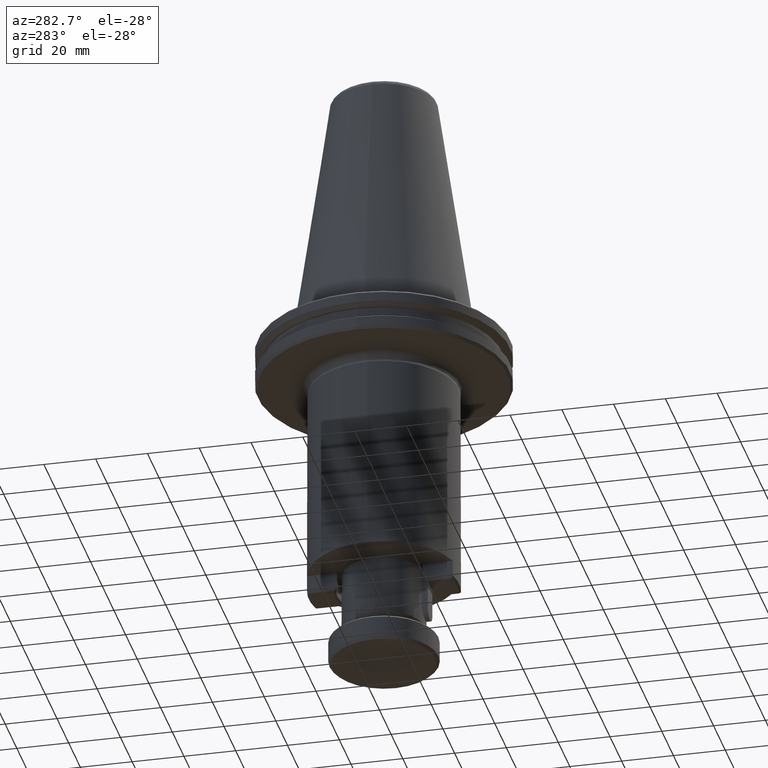
[diagram: clean part render]
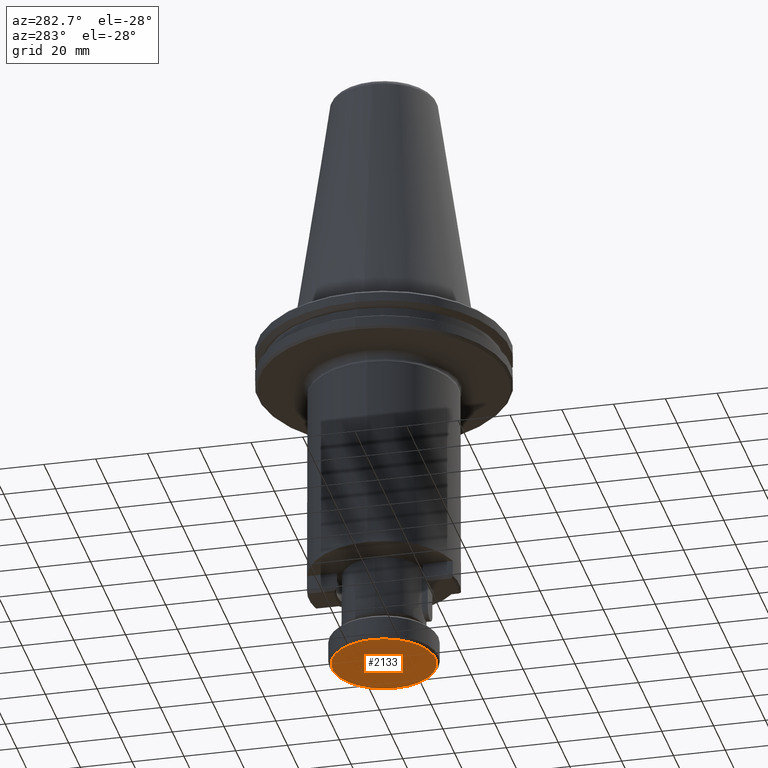
[diagram: same view with one face highlighted and labeled with its STEP entity id]
A machine part, auxiliary view. The second image highlights one B-rep face of the part: STEP entity #2133.
In plain terms, the highlighted planar face has unit normal (0, -0, 1).
Its self-contained STEP definition (entity closure, byte-faithful):
#18 = ORIENTED_EDGE ( 'NONE', *, *, #969, .F. ) ;
#28 = AXIS2_PLACEMENT_3D ( 'NONE', #172, #160, #2384 ) ;
#35 = CIRCLE ( 'NONE', #2465, 20.00000000000000400 ) ;
#160 = DIRECTION ( 'NONE',  ( 0.0000000000000000000, 0.0000000000000000000, 1.000000000000000000 ) ) ;
#172 = CARTESIAN_POINT ( 'NONE',  ( 91.78900745422478700, 111.8872747687010000, -39.00049722171961300 ) ) ;
#753 = ORIENTED_EDGE ( 'NONE', *, *, #1540, .F. ) ;
#804 = VERTEX_POINT ( 'NONE', #1296 ) ;
#892 = EDGE_LOOP ( 'NONE', ( #753, #18 ) ) ;
#969 = EDGE_CURVE ( 'NONE', #804, #1261, #35, .T. ) ;
#1212 = DIRECTION ( 'NONE',  ( 0.0000000000000000000, -1.000000000000000000, -1.148116609684228900E-016 ) ) ;
#1261 = VERTEX_POINT ( 'NONE', #1819 ) ;
#1274 = FACE_OUTER_BOUND ( 'NONE', #892, .T. ) ;
#1296 = CARTESIAN_POINT ( 'NONE',  ( 71.78900745422478700, 111.8872747687010000, -39.00049722171961300 ) ) ;
#1382 = DIRECTION ( 'NONE',  ( 0.0000000000000000000, -1.148116609684228900E-016, 1.000000000000000000 ) ) ;
#1402 = PLANE ( 'NONE',  #1661 ) ;
#1454 = CARTESIAN_POINT ( 'NONE',  ( 91.78900745422478700, 111.8872747687010000, -39.00049722171961300 ) ) ;
#1540 = EDGE_CURVE ( 'NONE', #1261, #804, #1977, .T. ) ;
#1661 = AXIS2_PLACEMENT_3D ( 'NONE', #2417, #1382, #1212 ) ;
#1719 = DIRECTION ( 'NONE',  ( 1.000000000000000000, 0.0000000000000000000, 0.0000000000000000000 ) ) ;
#1819 = CARTESIAN_POINT ( 'NONE',  ( 111.7890074542247900, 111.8872747687010000, -39.00049722171961300 ) ) ;
#1977 = CIRCLE ( 'NONE', #28, 20.00000000000000400 ) ;
#2133 = ADVANCED_FACE ( 'NONE', ( #1274 ), #1402, .F. ) ;
#2384 = DIRECTION ( 'NONE',  ( 1.000000000000000000, 0.0000000000000000000, 0.0000000000000000000 ) ) ;
#2417 = CARTESIAN_POINT ( 'NONE',  ( 91.78900745422478700, 111.8872747687010000, -39.00049722171961300 ) ) ;
#2465 = AXIS2_PLACEMENT_3D ( 'NONE', #1454, #2665, #1719 ) ;
#2665 = DIRECTION ( 'NONE',  ( 0.0000000000000000000, 0.0000000000000000000, 1.000000000000000000 ) ) ;